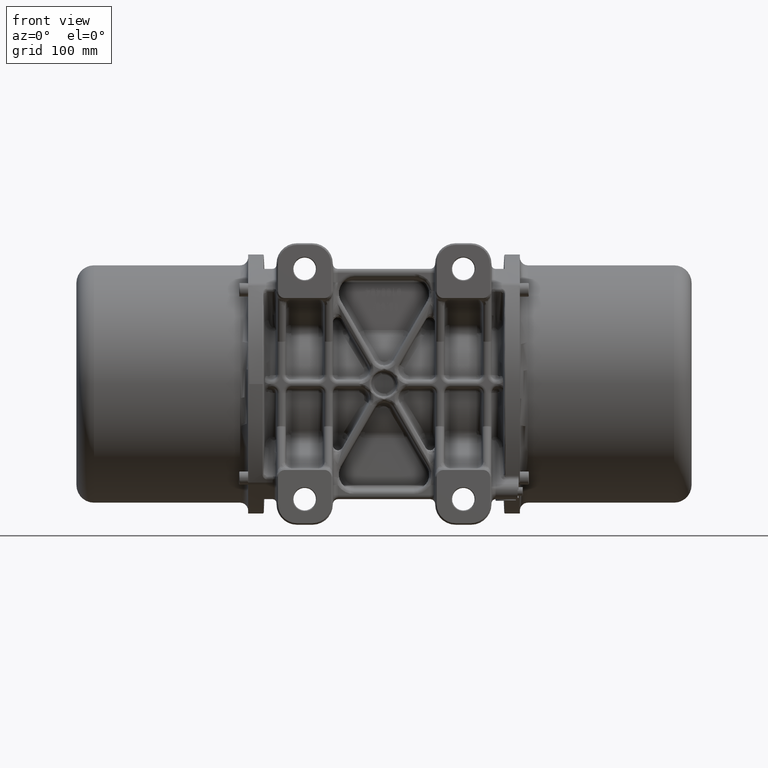
[diagram: clean part render]
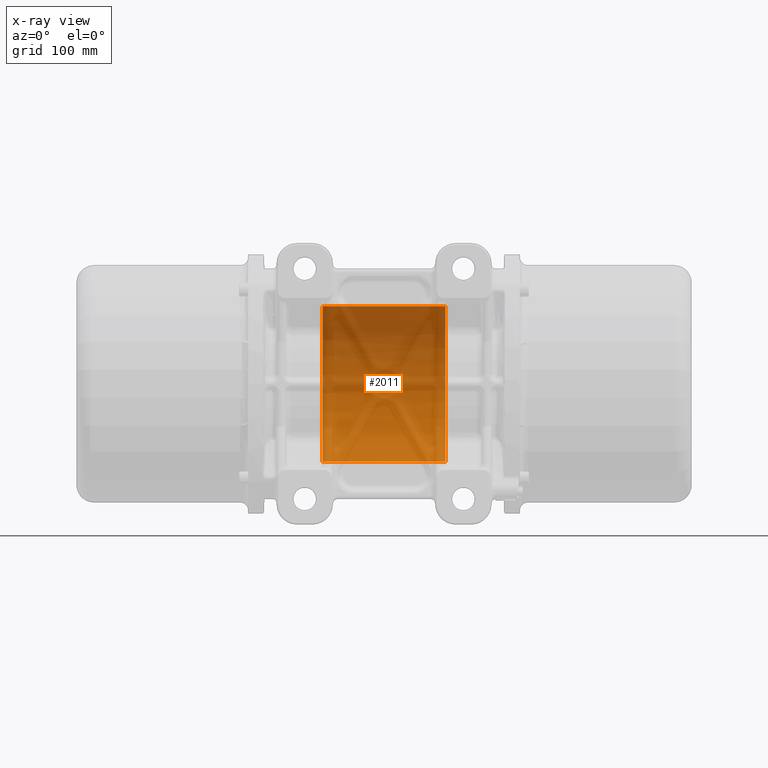
[diagram: x-ray — body ghosted, one internal face saturated and labeled with its STEP entity id]
A machine part, front view, then the same camera in x-ray: the body is ghosted and one INTERNAL B-rep face — a face not visible from any outside direction — is saturated and labeled: STEP entity #2011.
In plain terms, the highlighted cylindrical surface (partial cylindrical patch) has radius 76 mm, axis along (-1, 0, -0).
Its self-contained STEP definition (entity closure, byte-faithful):
#2011 = ADVANCED_FACE ( 'NONE', ( #115724 ), #84039, .T. ) ;
#4251 = AXIS2_PLACEMENT_3D ( 'NONE', #82918, #93143, #29221 ) ;
#5889 = EDGE_LOOP ( 'NONE', ( #45640, #54237, #60400, #111310, #56390, #51059 ) ) ;
#6762 = CIRCLE ( 'NONE', #20806, 76.00000000050587800 ) ;
#8143 = CARTESIAN_POINT ( 'NONE',  ( -60.00000000000000000, 1.480638704507374900E-015, 76.00000000050587800 ) ) ;
#8879 = VECTOR ( 'NONE', #91093, 1000.000000000000000 ) ;
#15624 = CARTESIAN_POINT ( 'NONE',  ( 60.00000000000000000, 5.669694223826133900E-034, -2.019601691252736100E-033 ) ) ;
#16524 = VECTOR ( 'NONE', #105282, 1000.000000000000000 ) ;
#17854 = CARTESIAN_POINT ( 'NONE',  ( 60.00000000000000000, 1.004763502583552300E-014, -76.00000000050587800 ) ) ;
#17881 = DIRECTION ( 'NONE',  ( 0.0000000000000000000, 0.0000000000000000000, 1.000000000000000000 ) ) ;
#17885 = EDGE_CURVE ( 'NONE', #75081, #95814, #18223, .T. ) ;
#18065 = VERTEX_POINT ( 'NONE', #103283 ) ;
#18223 = LINE ( 'NONE', #30665, #16524 ) ;
#20806 = AXIS2_PLACEMENT_3D ( 'NONE', #65620, #119285, #66556 ) ;
#21221 = DIRECTION ( 'NONE',  ( -1.000000000000000000, 1.233865587089479000E-017, -4.395152415790807400E-017 ) ) ;
#23850 = LINE ( 'NONE', #132614, #8879 ) ;
#29221 = DIRECTION ( 'NONE',  ( -2.191229653703518900E-015, -1.000000000000000000, 3.552713678799399700E-015 ) ) ;
#30665 = CARTESIAN_POINT ( 'NONE',  ( 60.00000000000000000, 9.307315673581836300E-015, -76.00000000050587800 ) ) ;
#39105 = VERTEX_POINT ( 'NONE', #108986 ) ;
#39321 = AXIS2_PLACEMENT_3D ( 'NONE', #52978, #21221, #75352 ) ;
#39586 = EDGE_CURVE ( 'NONE', #110588, #75081, #96325, .T. ) ;
#43233 = CARTESIAN_POINT ( 'NONE',  ( 60.00000000000000000, 73.94098999877979800, -17.57071421420281300 ) ) ;
#45640 = ORIENTED_EDGE ( 'NONE', *, *, #39586, .T. ) ;
#46790 = DIRECTION ( 'NONE',  ( -1.000000000000000000, 1.233865587089479000E-017, -4.395152415790807400E-017 ) ) ;
#49267 = EDGE_CURVE ( 'NONE', #95814, #77269, #6762, .T. ) ;
#51059 = ORIENTED_EDGE ( 'NONE', *, *, #137813, .F. ) ;
#52978 = CARTESIAN_POINT ( 'NONE',  ( 60.00000000000000000, 0.0000000000000000000, 0.0000000000000000000 ) ) ;
#54237 = ORIENTED_EDGE ( 'NONE', *, *, #17885, .T. ) ;
#56390 = ORIENTED_EDGE ( 'NONE', *, *, #68417, .T. ) ;
#60400 = ORIENTED_EDGE ( 'NONE', *, *, #49267, .T. ) ;
#60720 = CIRCLE ( 'NONE', #70153, 76.00000000050587800 ) ;
#65620 = CARTESIAN_POINT ( 'NONE',  ( -60.00000000000000000, 1.480638704507374900E-015, -5.274182898948968600E-015 ) ) ;
#66556 = DIRECTION ( 'NONE',  ( 0.0000000000000000000, 0.0000000000000000000, 1.000000000000000000 ) ) ;
#68417 = EDGE_CURVE ( 'NONE', #39105, #18065, #60720, .T. ) ;
#70153 = AXIS2_PLACEMENT_3D ( 'NONE', #15624, #100890, #17881 ) ;
#75081 = VERTEX_POINT ( 'NONE', #17854 ) ;
#75352 = DIRECTION ( 'NONE',  ( 0.0000000000000000000, 0.0000000000000000000, 1.000000000000000000 ) ) ;
#77269 = VERTEX_POINT ( 'NONE', #8143 ) ;
#82918 = CARTESIAN_POINT ( 'NONE',  ( 59.99999999999982900, -5.816395975966060000E-009, 2.182955205487502300E-009 ) ) ;
#83878 = CARTESIAN_POINT ( 'NONE',  ( -60.00000000000000000, 1.004763502583552300E-014, -76.00000000050587800 ) ) ;
#84039 = CYLINDRICAL_SURFACE ( 'NONE', #39321, 76.00000000050587800 ) ;
#91093 = DIRECTION ( 'NONE',  ( -1.000000000000000000, 1.233865587089479000E-017, -4.395152415790807400E-017 ) ) ;
#93143 = DIRECTION ( 'NONE',  ( 1.000000000000000000, -2.193751344756594200E-015, -2.977041458540140700E-017 ) ) ;
#95814 = VERTEX_POINT ( 'NONE', #83878 ) ;
#96325 = CIRCLE ( 'NONE', #105790, 76.00000000050587800 ) ;
#100890 = DIRECTION ( 'NONE',  ( -1.000000000000000000, 1.233865587089479000E-017, -4.395152415790807400E-017 ) ) ;
#103283 = CARTESIAN_POINT ( 'NONE',  ( 60.00000000000000000, 73.43696034852357000, 19.57071421410376300 ) ) ;
#105282 = DIRECTION ( 'NONE',  ( -1.000000000000000000, 1.233865587089479000E-017, -4.395152415790807400E-017 ) ) ;
#105790 = AXIS2_PLACEMENT_3D ( 'NONE', #110668, #46790, #121440 ) ;
#108986 = CARTESIAN_POINT ( 'NONE',  ( 60.00000000000000000, 7.403193522536874400E-016, 76.00000000050587800 ) ) ;
#110588 = VERTEX_POINT ( 'NONE', #43233 ) ;
#110668 = CARTESIAN_POINT ( 'NONE',  ( 60.00000000000000000, 5.669694223826133900E-034, -2.019601691252736100E-033 ) ) ;
#111310 = ORIENTED_EDGE ( 'NONE', *, *, #133924, .F. ) ;
#115267 = CIRCLE ( 'NONE', #4251, 76.00000000561604500 ) ;
#115724 = FACE_OUTER_BOUND ( 'NONE', #5889, .T. ) ;
#119285 = DIRECTION ( 'NONE',  ( 1.000000000000000000, -1.233865587089479000E-017, 4.395152415790807400E-017 ) ) ;
#121440 = DIRECTION ( 'NONE',  ( 0.0000000000000000000, 0.0000000000000000000, 1.000000000000000000 ) ) ;
#132614 = CARTESIAN_POINT ( 'NONE',  ( 60.00000000000000000, 0.0000000000000000000, 76.00000000050587800 ) ) ;
#133924 = EDGE_CURVE ( 'NONE', #39105, #77269, #23850, .T. ) ;
#137813 = EDGE_CURVE ( 'NONE', #110588, #18065, #115267, .T. ) ;